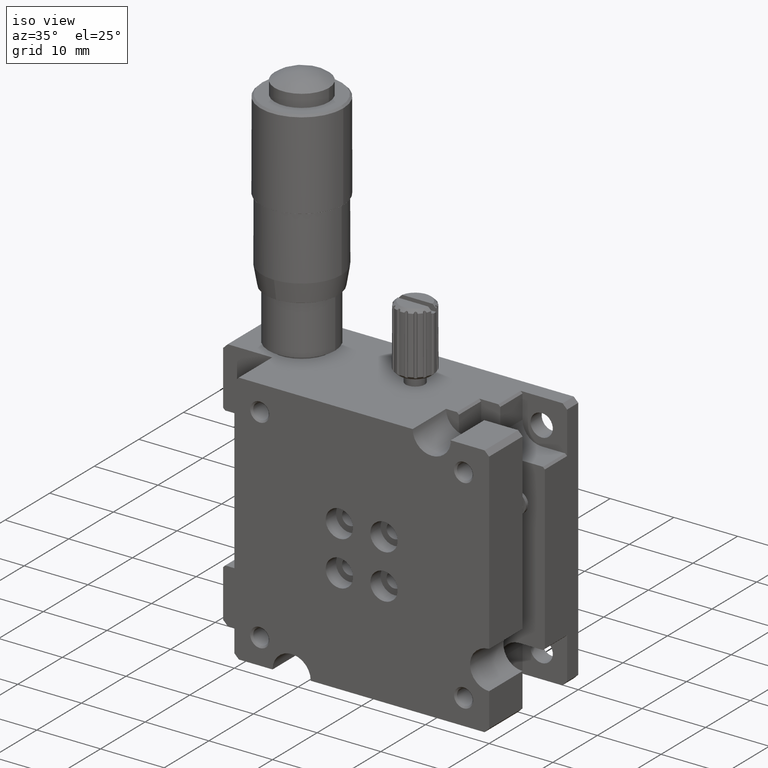
[diagram: clean part render]
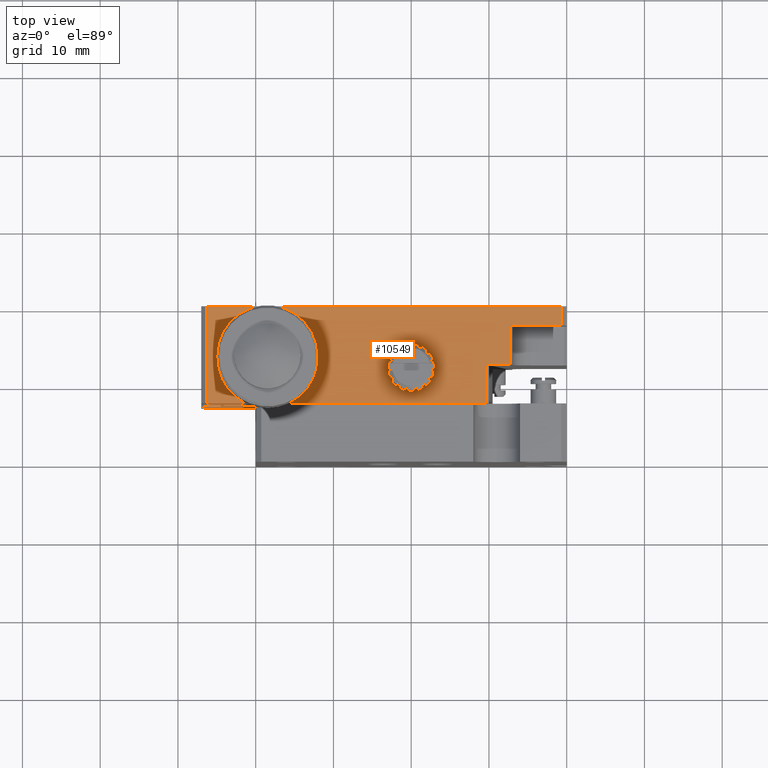
[diagram: tour spotlight — one face highlighted and labeled with its STEP entity id]
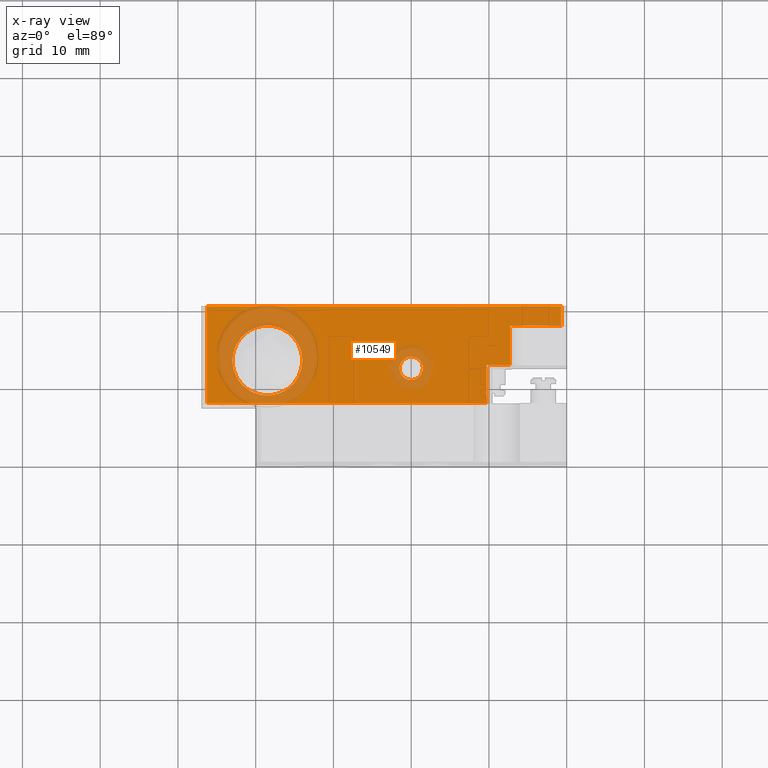
[diagram: x-ray of the same camera — body ghosted, this tour face saturated]
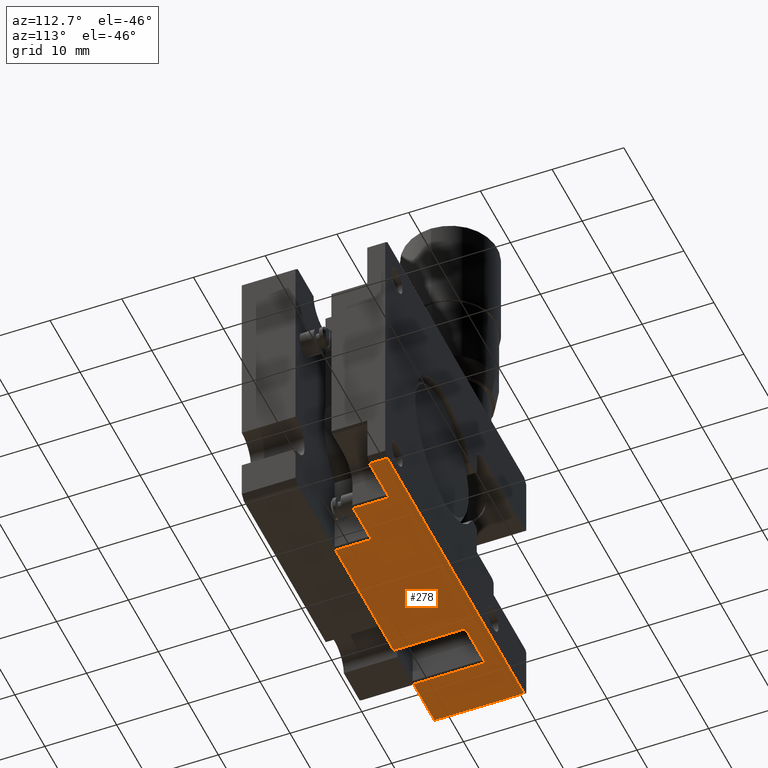
[diagram: tour spotlight — one face highlighted and labeled with its STEP entity id]
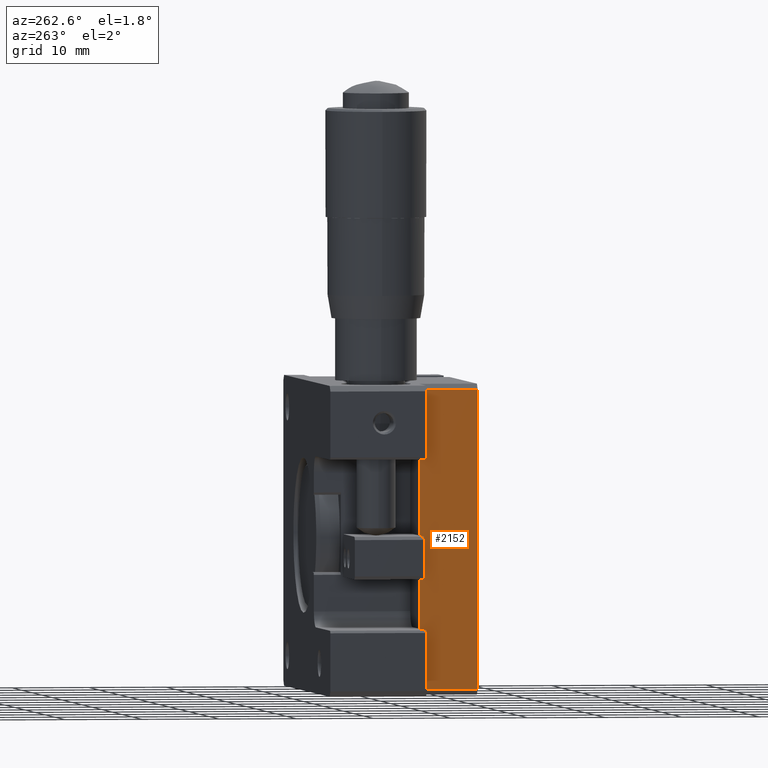
[diagram: tour spotlight — one face highlighted and labeled with its STEP entity id]
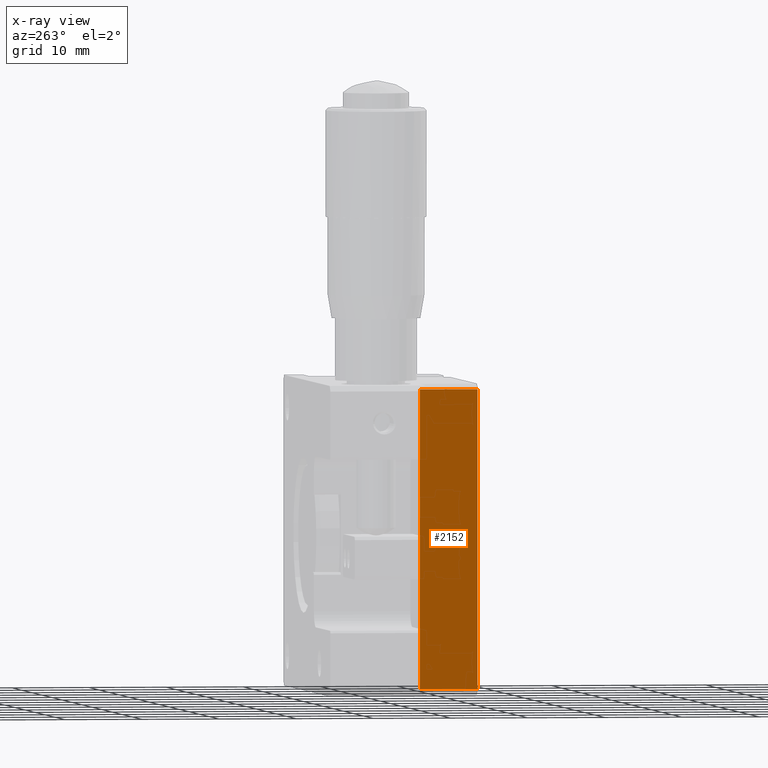
[diagram: x-ray of the same camera — body ghosted, this tour face saturated]
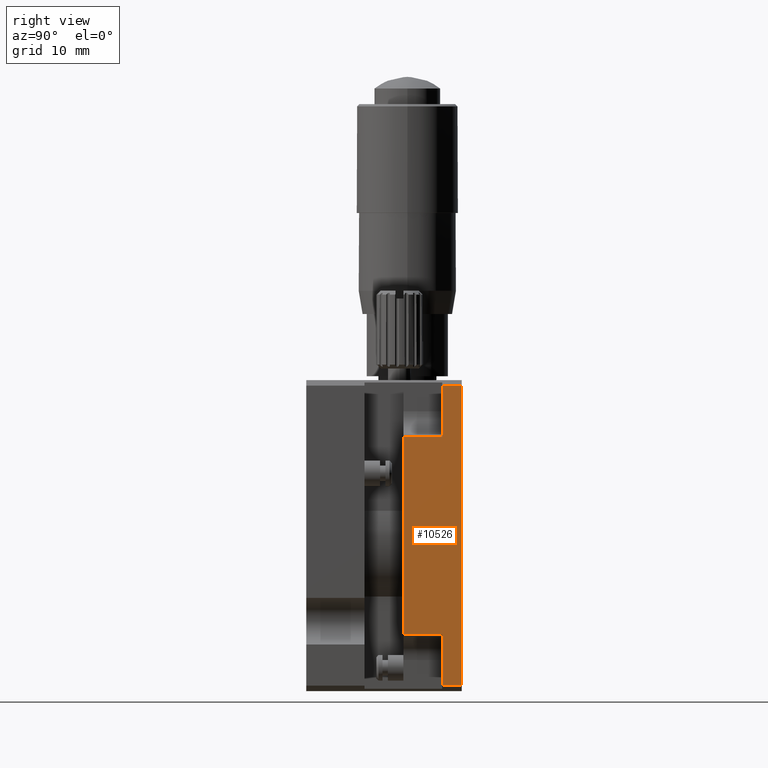
[diagram: tour spotlight — one face highlighted and labeled with its STEP entity id]
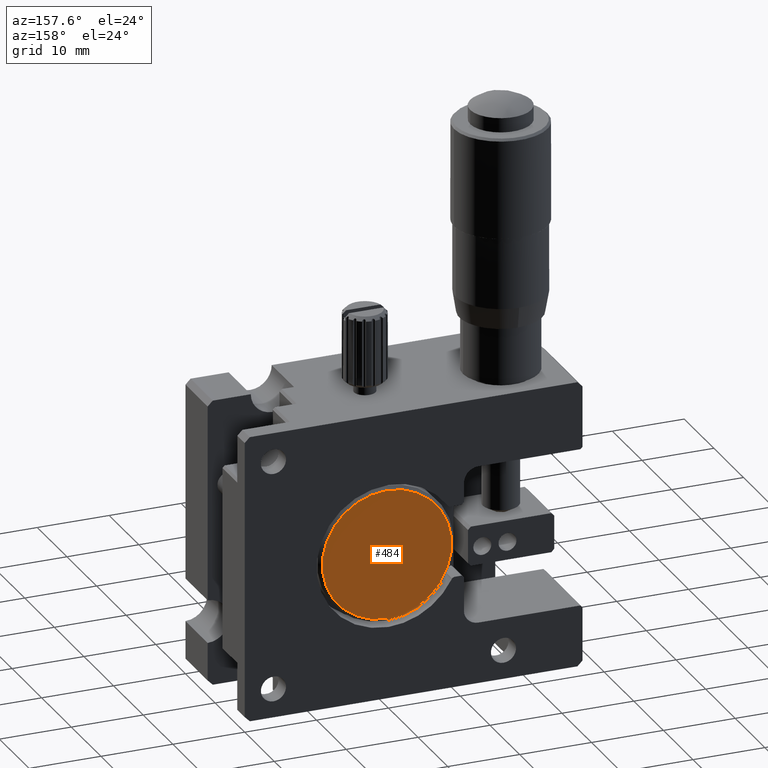
[diagram: tour spotlight — one face highlighted and labeled with its STEP entity id]
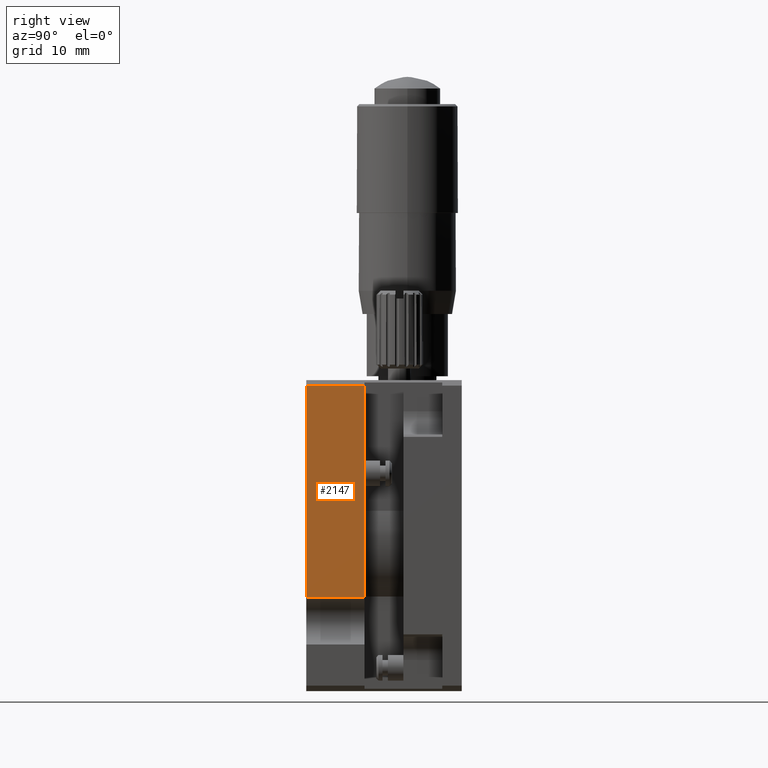
[diagram: tour spotlight — one face highlighted and labeled with its STEP entity id]
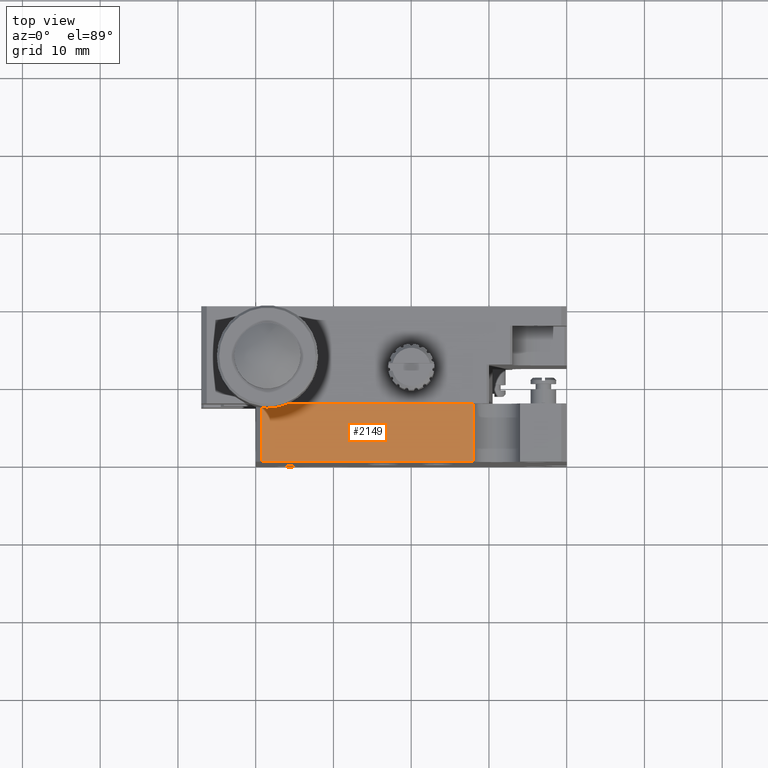
[diagram: tour spotlight — one face highlighted and labeled with its STEP entity id]
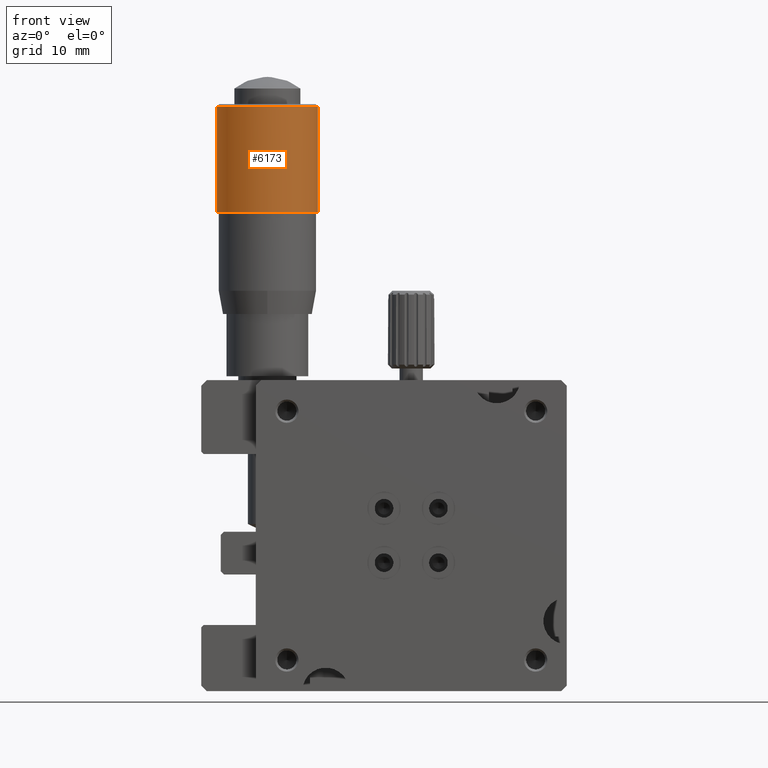
[diagram: tour spotlight — one face highlighted and labeled with its STEP entity id]
A machine part: a face-by-face anatomy tour. The part has 329 B-rep faces; the first image is the clean iso view, then the 8 largest visible faces are spotlighted one at a time (largest first), each with its STEP entity span.

Face 1 — top view, entity #10549. An x-ray twin of the same camera follows (body ghosted, this face saturated) — the face is partly hidden behind the body. In plain terms, the highlighted planar face has unit normal (0, 0, 1).
Definition (entity closure, byte-faithful):
#6 = VERTEX_POINT ( 'NONE', #5738 ) ;
#13 = VERTEX_POINT ( 'NONE', #5709 ) ;
#47 = VERTEX_POINT ( 'NONE', #5774 ) ;
#58 = VERTEX_POINT ( 'NONE', #5794 ) ;
#231 = FACE_BOUND ( 'NONE', #2898, .T. ) ;
#245 = FACE_BOUND ( 'NONE', #2910, .T. ) ;
#277 = FACE_OUTER_BOUND ( 'NONE', #2833, .T. ) ;
#891 = AXIS2_PLACEMENT_3D ( 'NONE', #8065, #8081, #8060 ) ;
#974 = ORIENTED_EDGE ( 'NONE', *, *, #10069, .F. ) ;
#1004 = ORIENTED_EDGE ( 'NONE', *, *, #10445, .T. ) ;
#1010 = ORIENTED_EDGE ( 'NONE', *, *, #10080, .T. ) ;
#1089 = ORIENTED_EDGE ( 'NONE', *, *, #10455, .T. ) ;
#1098 = ORIENTED_EDGE ( 'NONE', *, *, #10137, .T. ) ;
#1102 = AXIS2_PLACEMENT_3D ( 'NONE', #4132, #4111, #4108 ) ;
#1110 = ORIENTED_EDGE ( 'NONE', *, *, #10097, .T. ) ;
#1116 = ORIENTED_EDGE ( 'NONE', *, *, #10047, .T. ) ;
#1127 = ORIENTED_EDGE ( 'NONE', *, *, #10043, .T. ) ;
#1155 = ORIENTED_EDGE ( 'NONE', *, *, #10023, .T. ) ;
#1175 = ORIENTED_EDGE ( 'NONE', *, *, #4171, .T. ) ;
#1194 = ORIENTED_EDGE ( 'NONE', *, *, #10036, .T. ) ;
#1211 = ORIENTED_EDGE ( 'NONE', *, *, #10041, .T. ) ;
#1298 = AXIS2_PLACEMENT_3D ( 'NONE', #3103, #3122, #3106 ) ;
#1518 = AXIS2_PLACEMENT_3D ( 'NONE', #6059, #6082, #6060 ) ;
#1554 = AXIS2_PLACEMENT_3D ( 'NONE', #7132, #7116, #7117 ) ;
#2833 = EDGE_LOOP ( 'NONE', ( #1110, #1127, #1010, #1194, #1116, #1155, #974, #1211 ) ) ;
#2898 = EDGE_LOOP ( 'NONE', ( #1098, #1089 ) ) ;
#2910 = EDGE_LOOP ( 'NONE', ( #1004, #1175 ) ) ;
#3103 = CARTESIAN_POINT ( 'NONE',  ( 1.500000000000000400, 13.00000000000000200, 0.0000000000000000000 ) ) ;
#3106 = DIRECTION ( 'NONE',  ( 1.000000000000000000, 0.0000000000000000000, 0.0000000000000000000 ) ) ;
#3122 = DIRECTION ( 'NONE',  ( -0.0000000000000000000, -0.0000000000000000000, -1.000000000000000000 ) ) ;
#3463 = VERTEX_POINT ( 'NONE', #5450 ) ;
#4108 = DIRECTION ( 'NONE',  ( 1.000000000000000000, 0.0000000000000000000, 0.0000000000000000000 ) ) ;
#4111 = DIRECTION ( 'NONE',  ( -0.0000000000000000000, -0.0000000000000000000, -1.000000000000000000 ) ) ;
#4132 = CARTESIAN_POINT ( 'NONE',  ( 20.00000000000000000, 12.00000000000000000, 0.0000000000000000000 ) ) ;
#4171 = EDGE_CURVE ( 'NONE', #58, #47, #6820, .T. ) ;
#4312 = VERTEX_POINT ( 'NONE', #7605 ) ;
#4321 = VERTEX_POINT ( 'NONE', #7596 ) ;
#4331 = VERTEX_POINT ( 'NONE', #7601 ) ;
#4336 = VERTEX_POINT ( 'NONE', #7561 ) ;
#4344 = VERTEX_POINT ( 'NONE', #7559 ) ;
#4358 = VERTEX_POINT ( 'NONE', #7566 ) ;
#4364 = VERTEX_POINT ( 'NONE', #7577 ) ;
#5450 = CARTESIAN_POINT ( 'NONE',  ( 29.69999999999999600, 12.50000000000000000, -1.463672932855431000E-015 ) ) ;
#5709 = CARTESIAN_POINT ( 'NONE',  ( -3.000000000000000000, 13.00000000000000200, 0.0000000000000000000 ) ) ;
#5738 = CARTESIAN_POINT ( 'NONE',  ( 6.000000000000000900, 13.00000000000000200, 0.0000000000000000000 ) ) ;
#5774 = CARTESIAN_POINT ( 'NONE',  ( 21.50000000000000000, 12.00000000000000000, 0.0000000000000000000 ) ) ;
#5794 = CARTESIAN_POINT ( 'NONE',  ( 18.50000000000000000, 12.00000000000000000, 0.0000000000000000000 ) ) ;
#6058 = PLANE ( 'NONE',  #1518 ) ;
#6059 = CARTESIAN_POINT ( 'NONE',  ( -6.290000000000000000, 7.500000000000000000, 0.0000000000000000000 ) ) ;
#6060 = DIRECTION ( 'NONE',  ( 1.000000000000000000, 0.0000000000000000000, -0.0000000000000000000 ) ) ;
#6082 = DIRECTION ( 'NONE',  ( 0.0000000000000000000, 0.0000000000000000000, 1.000000000000000000 ) ) ;
#6820 = CIRCLE ( 'NONE', #1554, 1.500000000000001300 ) ;
#7116 = DIRECTION ( 'NONE',  ( -0.0000000000000000000, -0.0000000000000000000, -1.000000000000000000 ) ) ;
#7117 = DIRECTION ( 'NONE',  ( 1.000000000000000000, 0.0000000000000000000, 0.0000000000000000000 ) ) ;
#7132 = CARTESIAN_POINT ( 'NONE',  ( 20.00000000000000000, 12.00000000000000000, 0.0000000000000000000 ) ) ;
#7559 = CARTESIAN_POINT ( 'NONE',  ( 32.70000000000000300, 17.50000000000000000, -3.205172672410272500E-015 ) ) ;
#7561 = CARTESIAN_POINT ( 'NONE',  ( 39.28999999999999900, 17.50000000000000000, 0.0000000000000000000 ) ) ;
#7566 = CARTESIAN_POINT ( 'NONE',  ( 29.70000000000000300, 7.500000000000000000, -1.219727444046262300E-015 ) ) ;
#7577 = CARTESIAN_POINT ( 'NONE',  ( 39.28999999999999900, 20.00000000000000000, 8.876905287225067600E-016 ) ) ;
#7596 = CARTESIAN_POINT ( 'NONE',  ( -6.290000000000000000, 7.500000000000000000, -5.416677968589100800E-032 ) ) ;
#7601 = CARTESIAN_POINT ( 'NONE',  ( 32.70000000000001000, 12.50000000000000000, -1.240056234780366900E-015 ) ) ;
#7605 = CARTESIAN_POINT ( 'NONE',  ( -6.290000000000000000, 20.00000000000000000, -5.416677968589100800E-032 ) ) ;
#8060 = DIRECTION ( 'NONE',  ( 1.000000000000000000, 0.0000000000000000000, 0.0000000000000000000 ) ) ;
#8065 = CARTESIAN_POINT ( 'NONE',  ( 1.500000000000000400, 13.00000000000000200, 0.0000000000000000000 ) ) ;
#8081 = DIRECTION ( 'NONE',  ( -0.0000000000000000000, -0.0000000000000000000, -1.000000000000000000 ) ) ;
#8655 = CARTESIAN_POINT ( 'NONE',  ( 32.70000000000001000, 7.500000000000000000, 0.0000000000000000000 ) ) ;
#8659 = CARTESIAN_POINT ( 'NONE',  ( 39.28999999999999900, 7.500000000000000000, 0.0000000000000000000 ) ) ;
#8662 = DIRECTION ( 'NONE',  ( -0.0000000000000000000, 1.000000000000000000, 0.0000000000000000000 ) ) ;
#8664 = DIRECTION ( 'NONE',  ( -0.0000000000000000000, 1.000000000000000000, 0.0000000000000000000 ) ) ;
#8681 = DIRECTION ( 'NONE',  ( -0.0000000000000000000, 1.000000000000000000, 0.0000000000000000000 ) ) ;
#8687 = DIRECTION ( 'NONE',  ( 0.0000000000000000000, -1.000000000000000000, -0.0000000000000000000 ) ) ;
#8699 = CARTESIAN_POINT ( 'NONE',  ( -6.290000000000000000, 7.500000000000000000, 0.0000000000000000000 ) ) ;
#8710 = CARTESIAN_POINT ( 'NONE',  ( -6.290000000000000000, 17.50000000000000000, 0.0000000000000000000 ) ) ;
#8716 = DIRECTION ( 'NONE',  ( 1.000000000000000000, 0.0000000000000000000, -0.0000000000000000000 ) ) ;
#8719 = CARTESIAN_POINT ( 'NONE',  ( 29.70000000000000300, 7.500000000000000000, 0.0000000000000000000 ) ) ;
#8721 = CARTESIAN_POINT ( 'NONE',  ( -7.000000000000000000, 20.00000000000000000, 1.084202172485500000E-016 ) ) ;
#8729 = DIRECTION ( 'NONE',  ( 1.000000000000000000, 0.0000000000000000000, -0.0000000000000000000 ) ) ;
#8759 = DIRECTION ( 'NONE',  ( 1.000000000000000000, 0.0000000000000000000, -0.0000000000000000000 ) ) ;
#8791 = CARTESIAN_POINT ( 'NONE',  ( -6.290000000000000000, 12.50000000000000000, 0.0000000000000000000 ) ) ;
#8808 = CARTESIAN_POINT ( 'NONE',  ( -6.290000000000000000, 7.500000000000000000, 0.0000000000000000000 ) ) ;
#8811 = DIRECTION ( 'NONE',  ( 1.000000000000000000, 0.0000000000000000000, -0.0000000000000000000 ) ) ;
#8952 = VECTOR ( 'NONE', #8664, 1000.000000000000000 ) ;
#8963 = LINE ( 'NONE', #8659, #8952 ) ;
#8985 = VECTOR ( 'NONE', #8687, 1000.000000000000000 ) ;
#9004 = LINE ( 'NONE', #8655, #9019 ) ;
#9014 = LINE ( 'NONE', #8719, #9015 ) ;
#9015 = VECTOR ( 'NONE', #8681, 1000.000000000000000 ) ;
#9016 = VECTOR ( 'NONE', #8716, 1000.000000000000000 ) ;
#9019 = VECTOR ( 'NONE', #8662, 1000.000000000000000 ) ;
#9028 = LINE ( 'NONE', #8699, #8985 ) ;
#9038 = LINE ( 'NONE', #8710, #9016 ) ;
#9051 = VECTOR ( 'NONE', #8729, 1000.000000000000000 ) ;
#9094 = LINE ( 'NONE', #8791, #9101 ) ;
#9100 = LINE ( 'NONE', #8721, #9051 ) ;
#9101 = VECTOR ( 'NONE', #8759, 1000.000000000000000 ) ;
#9134 = VECTOR ( 'NONE', #8811, 1000.000000000000000 ) ;
#9161 = LINE ( 'NONE', #8808, #9134 ) ;
#9213 = CIRCLE ( 'NONE', #891, 4.500000000000000900 ) ;
#9671 = CIRCLE ( 'NONE', #1298, 4.500000000000000900 ) ;
#9677 = CIRCLE ( 'NONE', #1102, 1.500000000000001300 ) ;
#10023 = EDGE_CURVE ( 'NONE', #4336, #4364, #8963, .T. ) ;
#10036 = EDGE_CURVE ( 'NONE', #4331, #4344, #9004, .T. ) ;
#10041 = EDGE_CURVE ( 'NONE', #4312, #4321, #9028, .T. ) ;
#10043 = EDGE_CURVE ( 'NONE', #4358, #3463, #9014, .T. ) ;
#10047 = EDGE_CURVE ( 'NONE', #4344, #4336, #9038, .T. ) ;
#10069 = EDGE_CURVE ( 'NONE', #4312, #4364, #9100, .T. ) ;
#10080 = EDGE_CURVE ( 'NONE', #3463, #4331, #9094, .T. ) ;
#10097 = EDGE_CURVE ( 'NONE', #4321, #4358, #9161, .T. ) ;
#10137 = EDGE_CURVE ( 'NONE', #6, #13, #9213, .T. ) ;
#10445 = EDGE_CURVE ( 'NONE', #47, #58, #9677, .T. ) ;
#10455 = EDGE_CURVE ( 'NONE', #13, #6, #9671, .T. ) ;
#10549 = ADVANCED_FACE ( 'NONE', ( #277, #231, #245 ), #6058, .T. ) ;

Face 2 — auxiliary view, entity #278. In plain terms, the highlighted planar face has unit normal (0, 0, -1).
Definition (entity closure, byte-faithful):
#255 = FACE_OUTER_BOUND ( 'NONE', #2854, .T. ) ;
#278 = ADVANCED_FACE ( 'NONE', ( #255 ), #6071, .T. ) ;
#853 = ORIENTED_EDGE ( 'NONE', *, *, #10059, .T. ) ;
#876 = ORIENTED_EDGE ( 'NONE', *, *, #10066, .T. ) ;
#965 = ORIENTED_EDGE ( 'NONE', *, *, #10035, .T. ) ;
#1024 = ORIENTED_EDGE ( 'NONE', *, *, #10067, .T. ) ;
#1047 = ORIENTED_EDGE ( 'NONE', *, *, #10087, .T. ) ;
#1061 = ORIENTED_EDGE ( 'NONE', *, *, #10082, .T. ) ;
#1082 = ORIENTED_EDGE ( 'NONE', *, *, #10095, .T. ) ;
#1085 = ORIENTED_EDGE ( 'NONE', *, *, #10050, .T. ) ;
#1137 = ORIENTED_EDGE ( 'NONE', *, *, #10062, .F. ) ;
#1149 = ORIENTED_EDGE ( 'NONE', *, *, #10065, .T. ) ;
#1172 = ORIENTED_EDGE ( 'NONE', *, *, #10042, .T. ) ;
#1198 = ORIENTED_EDGE ( 'NONE', *, *, #10029, .T. ) ;
#1574 = AXIS2_PLACEMENT_3D ( 'NONE', #6074, #6091, #6073 ) ;
#2854 = EDGE_LOOP ( 'NONE', ( #1061, #965, #1085, #1172, #1149, #1082, #1137, #1198, #876, #1024, #853, #1047 ) ) ;
#3544 = VERTEX_POINT ( 'NONE', #4575 ) ;
#3554 = VERTEX_POINT ( 'NONE', #4902 ) ;
#4309 = VERTEX_POINT ( 'NONE', #7618 ) ;
#4311 = VERTEX_POINT ( 'NONE', #7615 ) ;
#4320 = VERTEX_POINT ( 'NONE', #7583 ) ;
#4328 = VERTEX_POINT ( 'NONE', #7570 ) ;
#4334 = VERTEX_POINT ( 'NONE', #7602 ) ;
#4345 = VERTEX_POINT ( 'NONE', #7574 ) ;
#4350 = VERTEX_POINT ( 'NONE', #7571 ) ;
#4353 = VERTEX_POINT ( 'NONE', #7589 ) ;
#4356 = VERTEX_POINT ( 'NONE', #7587 ) ;
#4365 = VERTEX_POINT ( 'NONE', #7578 ) ;
#4575 = CARTESIAN_POINT ( 'NONE',  ( -6.289999999999999100, 7.500000000000000000, -40.00000000000000000 ) ) ;
#4902 = CARTESIAN_POINT ( 'NONE',  ( 0.7000000000000200500, 7.500000000000000000, -40.00000000000000000 ) ) ;
#6071 = PLANE ( 'NONE',  #1574 ) ;
#6073 = DIRECTION ( 'NONE',  ( -1.000000000000000000, 0.0000000000000000000, -0.0000000000000000000 ) ) ;
#6074 = CARTESIAN_POINT ( 'NONE',  ( 39.28999999999999900, 7.500000000000000000, -40.00000000000000000 ) ) ;
#6091 = DIRECTION ( 'NONE',  ( 0.0000000000000000000, 0.0000000000000000000, -1.000000000000000000 ) ) ;
#7570 = CARTESIAN_POINT ( 'NONE',  ( 26.70000000000000300, 12.50000000000000000, -40.00000000000000000 ) ) ;
#7571 = CARTESIAN_POINT ( 'NONE',  ( 32.70000000000001000, 12.50000000000000000, -40.00000000000000000 ) ) ;
#7574 = CARTESIAN_POINT ( 'NONE',  ( 39.28999999999999900, 17.50000000000000000, -40.00000000000000000 ) ) ;
#7578 = CARTESIAN_POINT ( 'NONE',  ( -6.289999999999999100, 20.00000000000000000, -40.00000000000000000 ) ) ;
#7583 = CARTESIAN_POINT ( 'NONE',  ( 7.300000000000003400, 17.50000000000000000, -39.99999999999999300 ) ) ;
#7587 = CARTESIAN_POINT ( 'NONE',  ( 0.7000000000000200500, 17.50000000000000000, -40.00000000000000000 ) ) ;
#7589 = CARTESIAN_POINT ( 'NONE',  ( 26.70000000000000300, 7.500000000000000000, -40.00000000000000000 ) ) ;
#7602 = CARTESIAN_POINT ( 'NONE',  ( 39.28999999999999900, 20.00000000000000400, -40.00000000000000000 ) ) ;
#7615 = CARTESIAN_POINT ( 'NONE',  ( 7.299999999999998000, 7.500000000000000000, -40.00000000000000000 ) ) ;
#7618 = CARTESIAN_POINT ( 'NONE',  ( 32.70000000000001000, 17.50000000000000000, -40.00000000000000000 ) ) ;
#8653 = CARTESIAN_POINT ( 'NONE',  ( 7.299999999999999800, 7.500000000000000000, -40.00000000000000000 ) ) ;
#8654 = DIRECTION ( 'NONE',  ( -0.0000000000000000000, -1.000000000000000000, -0.0000000000000000000 ) ) ;
#8660 = DIRECTION ( 'NONE',  ( 0.0000000000000000000, 1.000000000000000000, 0.0000000000000000000 ) ) ;
#8666 = CARTESIAN_POINT ( 'NONE',  ( 39.28999999999999900, 7.500000000000000000, -40.00000000000000000 ) ) ;
#8691 = CARTESIAN_POINT ( 'NONE',  ( 39.28999999999999900, 12.50000000000000000, -40.00000000000000000 ) ) ;
#8694 = DIRECTION ( 'NONE',  ( -1.000000000000000000, 0.0000000000000000000, -0.0000000000000000000 ) ) ;
#8701 = CARTESIAN_POINT ( 'NONE',  ( 0.7000000000000191600, 7.500000000000000000, -40.00000000000000000 ) ) ;
#8704 = DIRECTION ( 'NONE',  ( -1.000000000000000000, 0.0000000000000000000, -0.0000000000000000000 ) ) ;
#8706 = DIRECTION ( 'NONE',  ( -0.0000000000000000000, -1.000000000000000000, -0.0000000000000000000 ) ) ;
#8712 = CARTESIAN_POINT ( 'NONE',  ( 39.28999999999999900, 17.50000000000000000, -40.00000000000000000 ) ) ;
#8726 = CARTESIAN_POINT ( 'NONE',  ( -7.000000000000000000, 20.00000000000000000, -40.00000000000000000 ) ) ;
#8728 = DIRECTION ( 'NONE',  ( -0.0000000000000000000, -1.000000000000000000, -0.0000000000000000000 ) ) ;
#8730 = DIRECTION ( 'NONE',  ( -1.000000000000000000, 0.0000000000000000000, -0.0000000000000000000 ) ) ;
#8733 = DIRECTION ( 'NONE',  ( -1.000000000000000000, 0.0000000000000000000, -0.0000000000000000000 ) ) ;
#8735 = DIRECTION ( 'NONE',  ( -1.000000000000000000, 0.0000000000000000000, -0.0000000000000000000 ) ) ;
#8739 = DIRECTION ( 'NONE',  ( -1.000000000000000000, -0.0000000000000000000, 0.0000000000000000000 ) ) ;
#8741 = CARTESIAN_POINT ( 'NONE',  ( 32.70000000000001000, 7.500000000000000000, -40.00000000000000000 ) ) ;
#8744 = CARTESIAN_POINT ( 'NONE',  ( 39.28999999999999900, 7.500000000000000000, -40.00000000000000000 ) ) ;
#8748 = CARTESIAN_POINT ( 'NONE',  ( 39.28999999999999900, 7.500000000000000000, -40.00000000000000000 ) ) ;
#8750 = CARTESIAN_POINT ( 'NONE',  ( 39.28999999999999900, 17.50000000000000000, -40.00000000000000000 ) ) ;
#8776 = DIRECTION ( 'NONE',  ( -0.0000000000000000000, -1.000000000000000000, -0.0000000000000000000 ) ) ;
#8778 = CARTESIAN_POINT ( 'NONE',  ( 26.70000000000000300, 7.500000000000000000, -40.00000000000000000 ) ) ;
#8786 = CARTESIAN_POINT ( 'NONE',  ( -6.289999999999998300, 7.500000000000000000, -40.00000000000000000 ) ) ;
#8796 = DIRECTION ( 'NONE',  ( 0.0000000000000000000, 1.000000000000000000, 0.0000000000000000000 ) ) ;
#8978 = VECTOR ( 'NONE', #8654, 1000.000000000000000 ) ;
#9002 = LINE ( 'NONE', #8691, #9005 ) ;
#9003 = LINE ( 'NONE', #8653, #9029 ) ;
#9005 = VECTOR ( 'NONE', #8704, 1000.000000000000000 ) ;
#9006 = VECTOR ( 'NONE', #8694, 1000.000000000000000 ) ;
#9013 = VECTOR ( 'NONE', #8706, 1000.000000000000000 ) ;
#9020 = LINE ( 'NONE', #8666, #8978 ) ;
#9026 = LINE ( 'NONE', #8712, #9006 ) ;
#9029 = VECTOR ( 'NONE', #8660, 1000.000000000000000 ) ;
#9030 = LINE ( 'NONE', #8701, #9013 ) ;
#9045 = LINE ( 'NONE', #8748, #9046 ) ;
#9046 = VECTOR ( 'NONE', #8730, 1000.000000000000000 ) ;
#9050 = LINE ( 'NONE', #8726, #9105 ) ;
#9058 = VECTOR ( 'NONE', #8728, 1000.000000000000000 ) ;
#9064 = LINE ( 'NONE', #8744, #9067 ) ;
#9067 = VECTOR ( 'NONE', #8733, 1000.000000000000000 ) ;
#9075 = LINE ( 'NONE', #8750, #9099 ) ;
#9085 = VECTOR ( 'NONE', #8776, 1000.000000000000000 ) ;
#9092 = LINE ( 'NONE', #8786, #9150 ) ;
#9095 = LINE ( 'NONE', #8778, #9085 ) ;
#9096 = LINE ( 'NONE', #8741, #9058 ) ;
#9099 = VECTOR ( 'NONE', #8735, 1000.000000000000000 ) ;
#9105 = VECTOR ( 'NONE', #8739, 1000.000000000000000 ) ;
#9150 = VECTOR ( 'NONE', #8796, 1000.000000000000000 ) ;
#10029 = EDGE_CURVE ( 'NONE', #4334, #4345, #9020, .T. ) ;
#10035 = EDGE_CURVE ( 'NONE', #4311, #4320, #9003, .T. ) ;
#10042 = EDGE_CURVE ( 'NONE', #4356, #3554, #9030, .T. ) ;
#10050 = EDGE_CURVE ( 'NONE', #4320, #4356, #9026, .T. ) ;
#10059 = EDGE_CURVE ( 'NONE', #4350, #4328, #9002, .T. ) ;
#10062 = EDGE_CURVE ( 'NONE', #4334, #4365, #9050, .T. ) ;
#10065 = EDGE_CURVE ( 'NONE', #3554, #3544, #9064, .T. ) ;
#10066 = EDGE_CURVE ( 'NONE', #4345, #4309, #9075, .T. ) ;
#10067 = EDGE_CURVE ( 'NONE', #4309, #4350, #9096, .T. ) ;
#10082 = EDGE_CURVE ( 'NONE', #4353, #4311, #9045, .T. ) ;
#10087 = EDGE_CURVE ( 'NONE', #4328, #4353, #9095, .T. ) ;
#10095 = EDGE_CURVE ( 'NONE', #3544, #4365, #9092, .T. ) ;

Face 3 — auxiliary view, entity #2152. An x-ray twin of the same camera follows (body ghosted, this face saturated) — the face is partly hidden behind the body. In plain terms, the highlighted planar face has unit normal (1, 0, 0).
Definition (entity closure, byte-faithful):
#63 = VERTEX_POINT ( 'NONE', #5745 ) ;
#75 = VERTEX_POINT ( 'NONE', #5770 ) ;
#90 = VERTEX_POINT ( 'NONE', #5787 ) ;
#92 = VERTEX_POINT ( 'NONE', #5780 ) ;
#99 = VERTEX_POINT ( 'NONE', #5813 ) ;
#1620 = AXIS2_PLACEMENT_3D ( 'NONE', #5294, #5296, #5300 ) ;
#1724 = ORIENTED_EDGE ( 'NONE', *, *, #6889, .F. ) ;
#1731 = ORIENTED_EDGE ( 'NONE', *, *, #6926, .T. ) ;
#1756 = ORIENTED_EDGE ( 'NONE', *, *, #6927, .F. ) ;
#1795 = ORIENTED_EDGE ( 'NONE', *, *, #6919, .F. ) ;
#1828 = ORIENTED_EDGE ( 'NONE', *, *, #6898, .F. ) ;
#1829 = ORIENTED_EDGE ( 'NONE', *, *, #6873, .F. ) ;
#2152 = ADVANCED_FACE ( 'NONE', ( #6707 ), #5273, .F. ) ;
#2650 = EDGE_LOOP ( 'NONE', ( #1829, #1828, #1724, #1756, #1795, #1731 ) ) ;
#3855 = VERTEX_POINT ( 'NONE', #6973 ) ;
#5273 = PLANE ( 'NONE',  #1620 ) ;
#5294 = CARTESIAN_POINT ( 'NONE',  ( 0.0000000000000000000, 7.500000000000000000, -39.28999999999999900 ) ) ;
#5296 = DIRECTION ( 'NONE',  ( 1.000000000000000000, 0.0000000000000000000, 0.0000000000000000000 ) ) ;
#5300 = DIRECTION ( 'NONE',  ( 0.0000000000000000000, 0.0000000000000000000, -1.000000000000000000 ) ) ;
#5745 = CARTESIAN_POINT ( 'NONE',  ( 0.0000000000000000000, 7.500000000000000000, -39.28999999999999900 ) ) ;
#5770 = CARTESIAN_POINT ( 'NONE',  ( -1.517883041479707400E-015, 7.500000000000000000, -19.50000000000000000 ) ) ;
#5780 = CARTESIAN_POINT ( 'NONE',  ( -2.168404344971012800E-016, 7.500000000000000000, -25.00000000000000000 ) ) ;
#5787 = CARTESIAN_POINT ( 'NONE',  ( -1.599198204416118800E-015, 7.500000000000000000, -0.7100000000000026300 ) ) ;
#5813 = CARTESIAN_POINT ( 'NONE',  ( -7.228014483236695800E-017, 0.0000000000000000000, -39.28999999999999900 ) ) ;
#6707 = FACE_OUTER_BOUND ( 'NONE', #2650, .T. ) ;
#6873 = EDGE_CURVE ( 'NONE', #90, #3855, #10006, .T. ) ;
#6889 = EDGE_CURVE ( 'NONE', #92, #75, #8886, .T. ) ;
#6898 = EDGE_CURVE ( 'NONE', #75, #90, #8872, .T. ) ;
#6919 = EDGE_CURVE ( 'NONE', #99, #63, #8923, .T. ) ;
#6926 = EDGE_CURVE ( 'NONE', #99, #3855, #8944, .T. ) ;
#6927 = EDGE_CURVE ( 'NONE', #63, #92, #8932, .T. ) ;
#6973 = CARTESIAN_POINT ( 'NONE',  ( 0.0000000000000000000, 0.0000000000000000000, -0.7100000000000016300 ) ) ;
#8469 = DIRECTION ( 'NONE',  ( 0.0000000000000000000, -1.000000000000000000, -0.0000000000000000000 ) ) ;
#8477 = CARTESIAN_POINT ( 'NONE',  ( 0.0000000000000000000, 7.500000000000000000, -0.7100000000000023000 ) ) ;
#8486 = CARTESIAN_POINT ( 'NONE',  ( 0.0000000000000000000, 7.500000000000000000, -39.28999999999999900 ) ) ;
#8513 = DIRECTION ( 'NONE',  ( -0.0000000000000000000, -0.0000000000000000000, 1.000000000000000000 ) ) ;
#8520 = CARTESIAN_POINT ( 'NONE',  ( 0.0000000000000000000, 7.500000000000000000, -39.28999999999999900 ) ) ;
#8551 = DIRECTION ( 'NONE',  ( -0.0000000000000000000, -0.0000000000000000000, 1.000000000000000000 ) ) ;
#8569 = CARTESIAN_POINT ( 'NONE',  ( 0.0000000000000000000, 0.0000000000000000000, 0.0000000000000000000 ) ) ;
#8576 = DIRECTION ( 'NONE',  ( -0.0000000000000000000, -0.0000000000000000000, 1.000000000000000000 ) ) ;
#8587 = CARTESIAN_POINT ( 'NONE',  ( 0.0000000000000000000, 7.500000000000000000, -39.28999999999999900 ) ) ;
#8589 = DIRECTION ( 'NONE',  ( 0.0000000000000000000, -0.0000000000000000000, 1.000000000000000000 ) ) ;
#8590 = CARTESIAN_POINT ( 'NONE',  ( 0.0000000000000000000, 7.500000000000000000, -39.28999999999999900 ) ) ;
#8596 = DIRECTION ( 'NONE',  ( -0.0000000000000000000, 1.000000000000000000, 0.0000000000000000000 ) ) ;
#8872 = LINE ( 'NONE', #8520, #8885 ) ;
#8885 = VECTOR ( 'NONE', #8551, 1000.000000000000000 ) ;
#8886 = LINE ( 'NONE', #8486, #8895 ) ;
#8895 = VECTOR ( 'NONE', #8513, 1000.000000000000000 ) ;
#8917 = VECTOR ( 'NONE', #8596, 1000.000000000000000 ) ;
#8923 = LINE ( 'NONE', #8590, #8917 ) ;
#8932 = LINE ( 'NONE', #8587, #8940 ) ;
#8933 = VECTOR ( 'NONE', #8589, 1000.000000000000000 ) ;
#8940 = VECTOR ( 'NONE', #8576, 1000.000000000000000 ) ;
#8944 = LINE ( 'NONE', #8569, #8933 ) ;
#10006 = LINE ( 'NONE', #8477, #10007 ) ;
#10007 = VECTOR ( 'NONE', #8469, 1000.000000000000000 ) ;

Face 4 — right view, entity #10526. In plain terms, the highlighted planar face has unit normal (1, 0, 0).
Definition (entity closure, byte-faithful):
#950 = ORIENTED_EDGE ( 'NONE', *, *, #10015, .T. ) ;
#964 = ORIENTED_EDGE ( 'NONE', *, *, #10018, .T. ) ;
#1058 = ORIENTED_EDGE ( 'NONE', *, *, #10098, .T. ) ;
#1070 = ORIENTED_EDGE ( 'NONE', *, *, #10028, .T. ) ;
#1101 = ORIENTED_EDGE ( 'NONE', *, *, #10105, .F. ) ;
#1122 = ORIENTED_EDGE ( 'NONE', *, *, #10077, .T. ) ;
#1133 = ORIENTED_EDGE ( 'NONE', *, *, #10046, .T. ) ;
#1207 = ORIENTED_EDGE ( 'NONE', *, *, #10045, .T. ) ;
#1392 = AXIS2_PLACEMENT_3D ( 'NONE', #5991, #5989, #5993 ) ;
#2888 = EDGE_LOOP ( 'NONE', ( #1122, #1207, #1058, #950, #1101, #1070, #1133, #964 ) ) ;
#3474 = VERTEX_POINT ( 'NONE', #5435 ) ;
#3479 = VERTEX_POINT ( 'NONE', #5499 ) ;
#3492 = VERTEX_POINT ( 'NONE', #5459 ) ;
#3555 = VERTEX_POINT ( 'NONE', #5262 ) ;
#4314 = VERTEX_POINT ( 'NONE', #7599 ) ;
#4333 = VERTEX_POINT ( 'NONE', #7612 ) ;
#4338 = VERTEX_POINT ( 'NONE', #7585 ) ;
#4346 = VERTEX_POINT ( 'NONE', #7611 ) ;
#5262 = CARTESIAN_POINT ( 'NONE',  ( 40.00000000000000000, 20.00000000000000400, -39.29000000000000600 ) ) ;
#5435 = CARTESIAN_POINT ( 'NONE',  ( 40.00000000000000000, 12.50000000000000000, -32.70000000000001000 ) ) ;
#5459 = CARTESIAN_POINT ( 'NONE',  ( 40.00000000000000000, 17.50000000000000000, -32.70000000000001000 ) ) ;
#5499 = CARTESIAN_POINT ( 'NONE',  ( 40.00000000000000000, 20.00000000000000000, -0.7099999999999997400 ) ) ;
#5982 = PLANE ( 'NONE',  #1392 ) ;
#5989 = DIRECTION ( 'NONE',  ( 1.000000000000000000, 0.0000000000000000000, 0.0000000000000000000 ) ) ;
#5991 = CARTESIAN_POINT ( 'NONE',  ( 40.00000000000000000, 7.500000000000000000, -0.7099999999999999600 ) ) ;
#5993 = DIRECTION ( 'NONE',  ( 0.0000000000000000000, 0.0000000000000000000, -1.000000000000000000 ) ) ;
#7585 = CARTESIAN_POINT ( 'NONE',  ( 40.00000000000000000, 12.50000000000000000, -7.300000000000009600 ) ) ;
#7599 = CARTESIAN_POINT ( 'NONE',  ( 40.00000000000000000, 17.50000000000000000, -39.28999999999999900 ) ) ;
#7611 = CARTESIAN_POINT ( 'NONE',  ( 40.00000000000000000, 17.50000000000000000, -7.300000000000008700 ) ) ;
#7612 = CARTESIAN_POINT ( 'NONE',  ( 40.00000000000000000, 17.50000000000000000, -0.7100000000000003000 ) ) ;
#8622 = DIRECTION ( 'NONE',  ( -0.0000000000000000000, 1.000000000000000000, 0.0000000000000000000 ) ) ;
#8623 = CARTESIAN_POINT ( 'NONE',  ( 40.00000000000000000, 7.500000000000000000, -7.300000000000009600 ) ) ;
#8624 = DIRECTION ( 'NONE',  ( 0.0000000000000000000, -1.000000000000000000, -0.0000000000000000000 ) ) ;
#8633 = CARTESIAN_POINT ( 'NONE',  ( 40.00000000000000000, 7.500000000000000000, -39.28999999999999900 ) ) ;
#8638 = CARTESIAN_POINT ( 'NONE',  ( 40.00000000000000000, 7.500000000000000000, -0.7099999999999999600 ) ) ;
#8672 = DIRECTION ( 'NONE',  ( 0.0000000000000000000, -1.000000000000000000, -0.0000000000000000000 ) ) ;
#8678 = CARTESIAN_POINT ( 'NONE',  ( 40.00000000000000000, 7.500000000000000000, -32.70000000000001000 ) ) ;
#8686 = DIRECTION ( 'NONE',  ( -0.0000000000000000000, 1.000000000000000000, 0.0000000000000000000 ) ) ;
#8695 = DIRECTION ( 'NONE',  ( 0.0000000000000000000, 0.0000000000000000000, -1.000000000000000000 ) ) ;
#8698 = CARTESIAN_POINT ( 'NONE',  ( 40.00000000000000000, 17.50000000000000000, -0.7099999999999999600 ) ) ;
#8736 = CARTESIAN_POINT ( 'NONE',  ( 40.00000000000000000, 12.50000000000000000, -0.7099999999999999600 ) ) ;
#8738 = DIRECTION ( 'NONE',  ( 0.0000000000000000000, 0.0000000000000000000, -1.000000000000000000 ) ) ;
#8802 = DIRECTION ( 'NONE',  ( 0.0000000000000000000, 0.0000000000000000000, -1.000000000000000000 ) ) ;
#8804 = DIRECTION ( 'NONE',  ( -0.0000000000000000000, 0.0000000000000000000, -1.000000000000000000 ) ) ;
#8828 = CARTESIAN_POINT ( 'NONE',  ( 40.00000000000000000, 17.50000000000000000, -0.7099999999999999600 ) ) ;
#8836 = CARTESIAN_POINT ( 'NONE',  ( 40.00000000000000000, 20.00000000000000000, 0.0000000000000000000 ) ) ;
#8915 = VECTOR ( 'NONE', #8622, 1000.000000000000000 ) ;
#8921 = LINE ( 'NONE', #8623, #8925 ) ;
#8925 = VECTOR ( 'NONE', #8624, 1000.000000000000000 ) ;
#8954 = LINE ( 'NONE', #8638, #9032 ) ;
#8971 = LINE ( 'NONE', #8633, #8915 ) ;
#8996 = VECTOR ( 'NONE', #8686, 1000.000000000000000 ) ;
#9021 = VECTOR ( 'NONE', #8695, 1000.000000000000000 ) ;
#9032 = VECTOR ( 'NONE', #8672, 1000.000000000000000 ) ;
#9034 = LINE ( 'NONE', #8698, #9021 ) ;
#9035 = LINE ( 'NONE', #8678, #8996 ) ;
#9070 = VECTOR ( 'NONE', #8738, 1000.000000000000000 ) ;
#9097 = LINE ( 'NONE', #8736, #9070 ) ;
#9106 = LINE ( 'NONE', #8828, #9152 ) ;
#9118 = LINE ( 'NONE', #8836, #9141 ) ;
#9141 = VECTOR ( 'NONE', #8804, 1000.000000000000000 ) ;
#9152 = VECTOR ( 'NONE', #8802, 1000.000000000000000 ) ;
#9273 = FACE_OUTER_BOUND ( 'NONE', #2888, .T. ) ;
#10015 = EDGE_CURVE ( 'NONE', #4314, #3555, #8971, .T. ) ;
#10018 = EDGE_CURVE ( 'NONE', #4346, #4338, #8921, .T. ) ;
#10028 = EDGE_CURVE ( 'NONE', #3479, #4333, #8954, .T. ) ;
#10045 = EDGE_CURVE ( 'NONE', #3474, #3492, #9035, .T. ) ;
#10046 = EDGE_CURVE ( 'NONE', #4333, #4346, #9034, .T. ) ;
#10077 = EDGE_CURVE ( 'NONE', #4338, #3474, #9097, .T. ) ;
#10098 = EDGE_CURVE ( 'NONE', #3492, #4314, #9106, .T. ) ;
#10105 = EDGE_CURVE ( 'NONE', #3479, #3555, #9118, .T. ) ;
#10526 = ADVANCED_FACE ( 'NONE', ( #9273 ), #5982, .T. ) ;

Face 5 — auxiliary view, entity #484. In plain terms, the highlighted planar face has unit normal (0, -1, 0).
Definition (entity closure, byte-faithful):
#484 = ADVANCED_FACE ( 'NONE', ( #6556 ), #4723, .F. ) ;
#641 = ORIENTED_EDGE ( 'NONE', *, *, #10410, .F. ) ;
#716 = ORIENTED_EDGE ( 'NONE', *, *, #10363, .F. ) ;
#1114 = AXIS2_PLACEMENT_3D ( 'NONE', #4061, #4036, #4029 ) ;
#1123 = AXIS2_PLACEMENT_3D ( 'NONE', #3895, #3888, #3894 ) ;
#1408 = AXIS2_PLACEMENT_3D ( 'NONE', #4694, #4695, #4696 ) ;
#2641 = EDGE_LOOP ( 'NONE', ( #641, #716 ) ) ;
#3820 = VERTEX_POINT ( 'NONE', #7986 ) ;
#3830 = VERTEX_POINT ( 'NONE', #7989 ) ;
#3888 = DIRECTION ( 'NONE',  ( 0.0000000000000000000, -1.000000000000000000, 0.0000000000000000000 ) ) ;
#3894 = DIRECTION ( 'NONE',  ( 0.0000000000000000000, 0.0000000000000000000, -1.000000000000000000 ) ) ;
#3895 = CARTESIAN_POINT ( 'NONE',  ( 20.00000000000000000, 19.50000000000000000, -20.00000000000000000 ) ) ;
#4029 = DIRECTION ( 'NONE',  ( 0.0000000000000000000, 0.0000000000000000000, -1.000000000000000000 ) ) ;
#4036 = DIRECTION ( 'NONE',  ( 0.0000000000000000000, -1.000000000000000000, 0.0000000000000000000 ) ) ;
#4061 = CARTESIAN_POINT ( 'NONE',  ( 20.00000000000000000, 19.50000000000000000, -20.00000000000000000 ) ) ;
#4694 = CARTESIAN_POINT ( 'NONE',  ( 20.00000000000000000, 19.50000000000000000, -20.00000000000000000 ) ) ;
#4695 = DIRECTION ( 'NONE',  ( 0.0000000000000000000, -1.000000000000000000, 0.0000000000000000000 ) ) ;
#4696 = DIRECTION ( 'NONE',  ( 0.0000000000000000000, -0.0000000000000000000, -1.000000000000000000 ) ) ;
#4723 = PLANE ( 'NONE',  #1408 ) ;
#6556 = FACE_OUTER_BOUND ( 'NONE', #2641, .T. ) ;
#7986 = CARTESIAN_POINT ( 'NONE',  ( 20.00000000000000000, 19.50000000000000000, -11.00000000000000000 ) ) ;
#7989 = CARTESIAN_POINT ( 'NONE',  ( 20.00000000000000000, 19.50000000000000000, -29.00000000000000000 ) ) ;
#9511 = CIRCLE ( 'NONE', #1123, 9.000000000000001800 ) ;
#9612 = CIRCLE ( 'NONE', #1114, 9.000000000000001800 ) ;
#10363 = EDGE_CURVE ( 'NONE', #3820, #3830, #9511, .T. ) ;
#10410 = EDGE_CURVE ( 'NONE', #3830, #3820, #9612, .T. ) ;

Face 6 — right view, entity #2147. In plain terms, the highlighted planar face has unit normal (-1, 0, 0).
Definition (entity closure, byte-faithful):
#68 = VERTEX_POINT ( 'NONE', #5746 ) ;
#93 = VERTEX_POINT ( 'NONE', #5783 ) ;
#95 = VERTEX_POINT ( 'NONE', #5795 ) ;
#1560 = AXIS2_PLACEMENT_3D ( 'NONE', #5265, #5312, #5277 ) ;
#1726 = ORIENTED_EDGE ( 'NONE', *, *, #6924, .F. ) ;
#1727 = ORIENTED_EDGE ( 'NONE', *, *, #10162, .T. ) ;
#1772 = ORIENTED_EDGE ( 'NONE', *, *, #10140, .T. ) ;
#1781 = ORIENTED_EDGE ( 'NONE', *, *, #6935, .F. ) ;
#2147 = ADVANCED_FACE ( 'NONE', ( #6694 ), #5281, .F. ) ;
#2695 = EDGE_LOOP ( 'NONE', ( #1726, #1781, #1727, #1772 ) ) ;
#3823 = VERTEX_POINT ( 'NONE', #7998 ) ;
#5265 = CARTESIAN_POINT ( 'NONE',  ( 40.00000000000000000, 7.500000000000000000, -0.7099999999999999600 ) ) ;
#5277 = DIRECTION ( 'NONE',  ( 0.0000000000000000000, 0.0000000000000000000, 1.000000000000000000 ) ) ;
#5281 = PLANE ( 'NONE',  #1560 ) ;
#5312 = DIRECTION ( 'NONE',  ( -1.000000000000000000, 0.0000000000000000000, 0.0000000000000000000 ) ) ;
#5746 = CARTESIAN_POINT ( 'NONE',  ( 40.00000000000000000, 0.0000000000000000000, -0.7099999999999998500 ) ) ;
#5783 = CARTESIAN_POINT ( 'NONE',  ( 40.00000000000000000, 7.500000000000000000, -27.99999999999998900 ) ) ;
#5795 = CARTESIAN_POINT ( 'NONE',  ( 40.00000000000000000, 0.0000000000000000000, -27.99999999999998900 ) ) ;
#6694 = FACE_OUTER_BOUND ( 'NONE', #2695, .T. ) ;
#6924 = EDGE_CURVE ( 'NONE', #3823, #93, #8948, .T. ) ;
#6935 = EDGE_CURVE ( 'NONE', #68, #3823, #8956, .T. ) ;
#7998 = CARTESIAN_POINT ( 'NONE',  ( 40.00000000000000000, 7.500000000000000000, -0.7100000000000000800 ) ) ;
#8058 = CARTESIAN_POINT ( 'NONE',  ( 40.00000000000000000, 7.500000000000000000, -27.99999999999998900 ) ) ;
#8059 = DIRECTION ( 'NONE',  ( -0.0000000000000000000, 1.000000000000000000, -0.0000000000000000000 ) ) ;
#8106 = DIRECTION ( 'NONE',  ( -0.0000000000000000000, 0.0000000000000000000, -1.000000000000000000 ) ) ;
#8114 = CARTESIAN_POINT ( 'NONE',  ( 40.00000000000000000, 0.0000000000000000000, 0.0000000000000000000 ) ) ;
#8570 = CARTESIAN_POINT ( 'NONE',  ( 40.00000000000000000, 7.500000000000000000, -0.7099999999999999600 ) ) ;
#8573 = DIRECTION ( 'NONE',  ( -0.0000000000000000000, -0.0000000000000000000, -1.000000000000000000 ) ) ;
#8602 = DIRECTION ( 'NONE',  ( 0.0000000000000000000, 1.000000000000000000, -0.0000000000000000000 ) ) ;
#8607 = CARTESIAN_POINT ( 'NONE',  ( 40.00000000000000000, 7.500000000000000000, -0.7099999999999999600 ) ) ;
#8948 = LINE ( 'NONE', #8570, #8966 ) ;
#8956 = LINE ( 'NONE', #8607, #8961 ) ;
#8961 = VECTOR ( 'NONE', #8602, 1000.000000000000000 ) ;
#8966 = VECTOR ( 'NONE', #8573, 1000.000000000000000 ) ;
#9170 = LINE ( 'NONE', #8058, #9229 ) ;
#9187 = LINE ( 'NONE', #8114, #9202 ) ;
#9202 = VECTOR ( 'NONE', #8106, 1000.000000000000000 ) ;
#9229 = VECTOR ( 'NONE', #8059, 1000.000000000000000 ) ;
#10140 = EDGE_CURVE ( 'NONE', #95, #93, #9170, .T. ) ;
#10162 = EDGE_CURVE ( 'NONE', #68, #95, #9187, .T. ) ;

Face 7 — top view, entity #2149. In plain terms, the highlighted planar face has unit normal (0, 0, -1).
Definition (entity closure, byte-faithful):
#31 = VERTEX_POINT ( 'NONE', #5717 ) ;
#88 = VERTEX_POINT ( 'NONE', #5767 ) ;
#100 = VERTEX_POINT ( 'NONE', #5846 ) ;
#104 = VERTEX_POINT ( 'NONE', #5840 ) ;
#1565 = AXIS2_PLACEMENT_3D ( 'NONE', #5283, #5269, #5284 ) ;
#1745 = ORIENTED_EDGE ( 'NONE', *, *, #6901, .F. ) ;
#1758 = ORIENTED_EDGE ( 'NONE', *, *, #10113, .T. ) ;
#1780 = ORIENTED_EDGE ( 'NONE', *, *, #6864, .F. ) ;
#1910 = ORIENTED_EDGE ( 'NONE', *, *, #10139, .T. ) ;
#2149 = ADVANCED_FACE ( 'NONE', ( #6724 ), #5292, .F. ) ;
#2694 = EDGE_LOOP ( 'NONE', ( #1745, #1780, #1758, #1910 ) ) ;
#5269 = DIRECTION ( 'NONE',  ( 0.0000000000000000000, 0.0000000000000000000, -1.000000000000000000 ) ) ;
#5283 = CARTESIAN_POINT ( 'NONE',  ( 0.7099999999999999600, 7.500000000000000000, 0.0000000000000000000 ) ) ;
#5284 = DIRECTION ( 'NONE',  ( -1.000000000000000000, 0.0000000000000000000, -0.0000000000000000000 ) ) ;
#5292 = PLANE ( 'NONE',  #1565 ) ;
#5717 = CARTESIAN_POINT ( 'NONE',  ( 28.00000000000000000, 0.0000000000000000000, 8.094066795400181400E-016 ) ) ;
#5767 = CARTESIAN_POINT ( 'NONE',  ( 0.7099999999999999600, 0.0000000000000000000, -7.222237291452134400E-032 ) ) ;
#5840 = CARTESIAN_POINT ( 'NONE',  ( 28.00000000000000000, 7.500000000000000000, 7.551965709157433200E-016 ) ) ;
#5846 = CARTESIAN_POINT ( 'NONE',  ( 0.7099999999999999600, 7.500000000000000000, 3.614007241618347900E-017 ) ) ;
#6724 = FACE_OUTER_BOUND ( 'NONE', #2694, .T. ) ;
#6864 = EDGE_CURVE ( 'NONE', #88, #100, #9975, .T. ) ;
#6901 = EDGE_CURVE ( 'NONE', #100, #104, #8859, .T. ) ;
#8053 = CARTESIAN_POINT ( 'NONE',  ( 28.00000000000000000, 7.500000000000000000, 1.510393141831486600E-015 ) ) ;
#8057 = DIRECTION ( 'NONE',  ( -0.0000000000000000000, 1.000000000000000000, -0.0000000000000000000 ) ) ;
#8410 = CARTESIAN_POINT ( 'NONE',  ( 0.7099999999999999600, 7.500000000000000000, 0.0000000000000000000 ) ) ;
#8422 = DIRECTION ( 'NONE',  ( 0.0000000000000000000, 1.000000000000000000, 0.0000000000000000000 ) ) ;
#8531 = CARTESIAN_POINT ( 'NONE',  ( 0.7099999999999999600, 7.500000000000000000, 0.0000000000000000000 ) ) ;
#8538 = DIRECTION ( 'NONE',  ( 1.000000000000000000, -0.0000000000000000000, 0.0000000000000000000 ) ) ;
#8827 = CARTESIAN_POINT ( 'NONE',  ( 0.0000000000000000000, 0.0000000000000000000, 1.084202172485500000E-016 ) ) ;
#8830 = DIRECTION ( 'NONE',  ( 1.000000000000000000, 0.0000000000000000000, -0.0000000000000000000 ) ) ;
#8851 = VECTOR ( 'NONE', #8538, 1000.000000000000000 ) ;
#8859 = LINE ( 'NONE', #8531, #8851 ) ;
#9123 = LINE ( 'NONE', #8827, #9136 ) ;
#9136 = VECTOR ( 'NONE', #8830, 1000.000000000000000 ) ;
#9179 = VECTOR ( 'NONE', #8057, 1000.000000000000000 ) ;
#9228 = LINE ( 'NONE', #8053, #9179 ) ;
#9934 = VECTOR ( 'NONE', #8422, 1000.000000000000000 ) ;
#9975 = LINE ( 'NONE', #8410, #9934 ) ;
#10113 = EDGE_CURVE ( 'NONE', #88, #31, #9123, .T. ) ;
#10139 = EDGE_CURVE ( 'NONE', #31, #104, #9228, .T. ) ;

Face 8 — front view, entity #6173. In plain terms, the highlighted cylindrical surface (partial cylindrical patch) has radius 6.5 mm, axis along (0, 0, -1).
Definition (entity closure, byte-faithful):
#874 = AXIS2_PLACEMENT_3D ( 'NONE', #8143, #8133, #8140 ) ;
#1049 = AXIS2_PLACEMENT_3D ( 'NONE', #3329, #3328, #3310 ) ;
#1060 = AXIS2_PLACEMENT_3D ( 'NONE', #3409, #3423, #3424 ) ;
#1739 = AXIS2_PLACEMENT_3D ( 'NONE', #7745, #7755, #7749 ) ;
#2064 = EDGE_LOOP ( 'NONE', ( #2529, #2544, #2547, #2585, #2559 ) ) ;
#2529 = ORIENTED_EDGE ( 'NONE', *, *, #10191, .F. ) ;
#2544 = ORIENTED_EDGE ( 'NONE', *, *, #10257, .T. ) ;
#2547 = ORIENTED_EDGE ( 'NONE', *, *, #10197, .T. ) ;
#2559 = ORIENTED_EDGE ( 'NONE', *, *, #10174, .T. ) ;
#2585 = ORIENTED_EDGE ( 'NONE', *, *, #10218, .T. ) ;
#3263 = CARTESIAN_POINT ( 'NONE',  ( -4.999999999999997300, 13.00000000000000200, -19.50000000000000400 ) ) ;
#3264 = DIRECTION ( 'NONE',  ( 6.123233995736769700E-017, 0.0000000000000000000, -1.000000000000000000 ) ) ;
#3310 = DIRECTION ( 'NONE',  ( -1.000000000000000000, 0.0000000000000000000, 0.0000000000000000000 ) ) ;
#3328 = DIRECTION ( 'NONE',  ( -6.123233995736769700E-017, -0.0000000000000000000, 1.000000000000000000 ) ) ;
#3329 = CARTESIAN_POINT ( 'NONE',  ( 1.500000000000001100, 13.00000000000000200, 21.51000000000000200 ) ) ;
#3409 = CARTESIAN_POINT ( 'NONE',  ( 1.500000000000000200, 13.00000000000000200, 35.19999999999998900 ) ) ;
#3423 = DIRECTION ( 'NONE',  ( 6.123233995736769700E-017, 0.0000000000000000000, -1.000000000000000000 ) ) ;
#3424 = DIRECTION ( 'NONE',  ( -1.000000000000000000, 0.0000000000000000000, 0.0000000000000000000 ) ) ;
#3471 = VERTEX_POINT ( 'NONE', #5490 ) ;
#3490 = VERTEX_POINT ( 'NONE', #5458 ) ;
#3497 = VERTEX_POINT ( 'NONE', #5491 ) ;
#3538 = VERTEX_POINT ( 'NONE', #5485 ) ;
#3620 = VERTEX_POINT ( 'NONE', #7873 ) ;
#5458 = CARTESIAN_POINT ( 'NONE',  ( -4.999999999999999100, 13.00000000000000200, 21.51000000000000200 ) ) ;
#5485 = CARTESIAN_POINT ( 'NONE',  ( 7.999999999968904900, 13.00000000000000200, 35.19999999999998900 ) ) ;
#5490 = CARTESIAN_POINT ( 'NONE',  ( 8.000000000000001800, 13.00000000000000200, 21.51000000000000200 ) ) ;
#5491 = CARTESIAN_POINT ( 'NONE',  ( -4.999999999968905800, 13.00000000000000200, 35.19999999999998900 ) ) ;
#6173 = ADVANCED_FACE ( 'NONE', ( #9754 ), #9841, .T. ) ;
#7745 = CARTESIAN_POINT ( 'NONE',  ( 1.500000000000003600, 13.00000000000000200, -19.50000000000000400 ) ) ;
#7749 = DIRECTION ( 'NONE',  ( -1.000000000000000000, 0.0000000000000000000, 0.0000000000000000000 ) ) ;
#7755 = DIRECTION ( 'NONE',  ( 6.123233995736769700E-017, 0.0000000000000000000, -1.000000000000000000 ) ) ;
#7873 = CARTESIAN_POINT ( 'NONE',  ( 1.500000000000000900, 6.500000000052058800, 21.51000000000000200 ) ) ;
#8133 = DIRECTION ( 'NONE',  ( -6.123233995736769700E-017, -0.0000000000000000000, 1.000000000000000000 ) ) ;
#8140 = DIRECTION ( 'NONE',  ( -1.000000000000000000, 0.0000000000000000000, 0.0000000000000000000 ) ) ;
#8143 = CARTESIAN_POINT ( 'NONE',  ( 1.500000000000001100, 13.00000000000000200, 21.51000000000000200 ) ) ;
#8189 = CARTESIAN_POINT ( 'NONE',  ( 8.000000000000003600, 13.00000000000000200, -19.50000000000000400 ) ) ;
#8193 = DIRECTION ( 'NONE',  ( 6.123233995736769700E-017, 0.0000000000000000000, -1.000000000000000000 ) ) ;
#9265 = LINE ( 'NONE', #3263, #9270 ) ;
#9270 = VECTOR ( 'NONE', #3264, 1000.000000000000000 ) ;
#9272 = VECTOR ( 'NONE', #8193, 1000.000000000000000 ) ;
#9278 = LINE ( 'NONE', #8189, #9272 ) ;
#9294 = CIRCLE ( 'NONE', #874, 6.500000000000000900 ) ;
#9303 = CIRCLE ( 'NONE', #1060, 6.500000000000000900 ) ;
#9343 = CIRCLE ( 'NONE', #1049, 6.500000000000000900 ) ;
#9754 = FACE_OUTER_BOUND ( 'NONE', #2064, .T. ) ;
#9841 = CYLINDRICAL_SURFACE ( 'NONE', #1739, 6.500000000000000900 ) ;
#10174 = EDGE_CURVE ( 'NONE', #3620, #3471, #9294, .T. ) ;
#10191 = EDGE_CURVE ( 'NONE', #3538, #3471, #9278, .T. ) ;
#10197 = EDGE_CURVE ( 'NONE', #3497, #3490, #9265, .T. ) ;
#10218 = EDGE_CURVE ( 'NONE', #3490, #3620, #9343, .T. ) ;
#10257 = EDGE_CURVE ( 'NONE', #3538, #3497, #9303, .T. ) ;